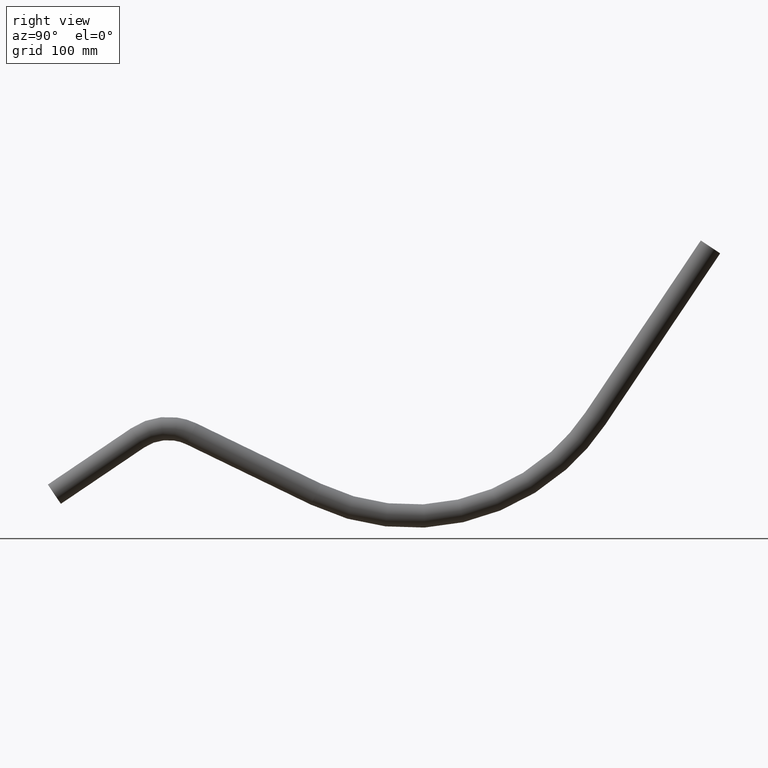
[diagram: clean part render]
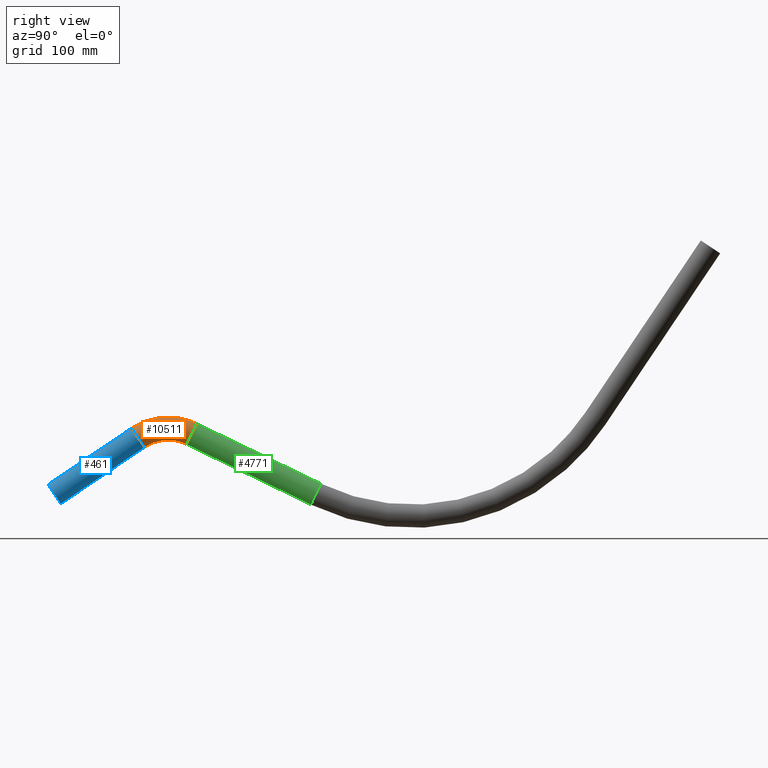
[diagram: same view with three faces highlighted in distinct colors, each labeled with its STEP entity id]
A machine part, right view with three faces highlighted in distinct colors.
Their STEP definitions:

[orange] entity #10511 — the highlighted toroidal blend (fillet) surface has major radius 78 mm and minor (blend) radius 16.85 mm.
#364 = EDGE_LOOP ( 'NONE', ( #8278 ) ) ;
#425 = DIRECTION ( 'NONE',  ( 0.000000000000000000, 0.4360091527519491250, 0.8999422307662461318 ) ) ;
#1528 = CARTESIAN_POINT ( 'NONE',  ( 0.000000000000000000, 198.9044785883536974, 87.48959659120592391 ) ) ;
#1829 = TOROIDAL_SURFACE ( 'NONE', #2701, 78.00000000000167688, 16.85000000000001563 ) ;
#2153 = FACE_OUTER_BOUND ( 'NONE', #7526, .T. ) ;
#2701 = AXIS2_PLACEMENT_3D ( 'NONE', #3807, #9348, #12627 ) ;
#3632 = AXIS2_PLACEMENT_3D ( 'NONE', #8514, #4124, #4213 ) ;
#3807 = CARTESIAN_POINT ( 'NONE',  ( 0.000000000000000000, 164.8957646737008815, 17.29410259143726591 ) ) ;
#4124 = DIRECTION ( 'NONE',  ( 0.000000000000000000, 0.8285446294372469378, 0.5599230277731889194 ) ) ;
#4213 = DIRECTION ( 'NONE',  ( 0.000000000000000000, -0.5599230277731889194, 0.8285446294372468268 ) ) ;
#4523 = AXIS2_PLACEMENT_3D ( 'NONE', #1528, #4943, #425 ) ;
#4943 = DIRECTION ( 'NONE',  ( 0.000000000000000000, 0.8999422307662464648, -0.4360091527519489585 ) ) ;
#5008 = CIRCLE ( 'NONE', #4523, 16.85000000000001563 ) ;
#5931 = EDGE_CURVE ( 'NONE', #14113, #14113, #5008, .T. ) ;
#7526 = EDGE_LOOP ( 'NONE', ( #7569 ) ) ;
#7569 = ORIENTED_EDGE ( 'NONE', *, *, #5931, .F. ) ;
#7993 = VERTEX_POINT ( 'NONE', #13561 ) ;
#8278 = ORIENTED_EDGE ( 'NONE', *, *, #12401, .T. ) ;
#8514 = CARTESIAN_POINT ( 'NONE',  ( 0.000000000000000000, 121.2217685073911895, 81.92058368754396724 ) ) ;
#9348 = DIRECTION ( 'NONE',  ( -1.000000000000000000, -0.000000000000000000, 0.000000000000000000 ) ) ;
#10511 = ADVANCED_FACE ( 'NONE', ( #2153, #12747 ), #1829, .T. ) ;
#12326 = CARTESIAN_POINT ( 'NONE',  ( 0.000000000000000000, 206.2512328122240319, 102.6536231796171847 ) ) ;
#12401 = EDGE_CURVE ( 'NONE', #7993, #7993, #13980, .T. ) ;
#12627 = DIRECTION ( 'NONE',  ( 0.000000000000000000, 0.000000000000000000, 1.000000000000000000 ) ) ;
#12747 = FACE_OUTER_BOUND ( 'NONE', #364, .T. ) ;
#13561 = CARTESIAN_POINT ( 'NONE',  ( 0.000000000000000000, 111.7870654894129387, 95.88156069356159605 ) ) ;
#13980 = CIRCLE ( 'NONE', #3632, 16.85000000000002629 ) ;
#14113 = VERTEX_POINT ( 'NONE', #12326 ) ;

[blue] entity #461 — the highlighted cylindrical surface (bore or boss wall) has radius 16.85 mm, axis along (0, 0.8285, 0.5599).
#461 = ADVANCED_FACE ( 'NONE', ( #4339, #4498 ), #14081, .T. ) ;
#3632 = AXIS2_PLACEMENT_3D ( 'NONE', #8514, #4124, #4213 ) ;
#3655 = EDGE_CURVE ( 'NONE', #6114, #6114, #13866, .T. ) ;
#3658 = AXIS2_PLACEMENT_3D ( 'NONE', #13859, #4007, #12908 ) ;
#3761 = DIRECTION ( 'NONE',  ( 0.000000000000000000, -0.5599230277731889194, 0.8285446294372469378 ) ) ;
#4007 = DIRECTION ( 'NONE',  ( 0.000000000000000000, 0.8285446294372469378, 0.5599230277731889194 ) ) ;
#4124 = DIRECTION ( 'NONE',  ( 0.000000000000000000, 0.8285446294372469378, 0.5599230277731889194 ) ) ;
#4213 = DIRECTION ( 'NONE',  ( 0.000000000000000000, -0.5599230277731889194, 0.8285446294372468268 ) ) ;
#4339 = FACE_OUTER_BOUND ( 'NONE', #14403, .T. ) ;
#4498 = FACE_OUTER_BOUND ( 'NONE', #9823, .T. ) ;
#4706 = AXIS2_PLACEMENT_3D ( 'NONE', #13916, #10429, #3761 ) ;
#6114 = VERTEX_POINT ( 'NONE', #11249 ) ;
#7993 = VERTEX_POINT ( 'NONE', #13561 ) ;
#8514 = CARTESIAN_POINT ( 'NONE',  ( 0.000000000000000000, 121.2217685073911895, 81.92058368754396724 ) ) ;
#9823 = EDGE_LOOP ( 'NONE', ( #14087 ) ) ;
#10429 = DIRECTION ( 'NONE',  ( 0.000000000000000000, 0.8285446294372469378, 0.5599230277731889194 ) ) ;
#11249 = CARTESIAN_POINT ( 'NONE',  ( 0.000000000000000000, -9.434703017978241846, 13.96097700601761993 ) ) ;
#11260 = ORIENTED_EDGE ( 'NONE', *, *, #12401, .F. ) ;
#12401 = EDGE_CURVE ( 'NONE', #7993, #7993, #13980, .T. ) ;
#12908 = DIRECTION ( 'NONE',  ( 0.000000000000000000, -0.5599230277731889194, 0.8285446294372469378 ) ) ;
#13561 = CARTESIAN_POINT ( 'NONE',  ( 0.000000000000000000, 111.7870654894129387, 95.88156069356159605 ) ) ;
#13859 = CARTESIAN_POINT ( 'NONE',  ( 0.000000000000000000, 0.000000000000000000, -3.469446951953614189E-15 ) ) ;
#13866 = CIRCLE ( 'NONE', #4706, 16.85000000000001563 ) ;
#13916 = CARTESIAN_POINT ( 'NONE',  ( 0.000000000000000000, 0.000000000000000000, -3.469446951953614189E-15 ) ) ;
#13980 = CIRCLE ( 'NONE', #3632, 16.85000000000002629 ) ;
#14081 = CYLINDRICAL_SURFACE ( 'NONE', #3658, 16.85000000000001563 ) ;
#14087 = ORIENTED_EDGE ( 'NONE', *, *, #3655, .T. ) ;
#14403 = EDGE_LOOP ( 'NONE', ( #11260 ) ) ;

[green] entity #4771 — the highlighted cylindrical surface (bore or boss wall) has radius 16.85 mm, axis along (0, 0.8999, -0.436).
#263 = DIRECTION ( 'NONE',  ( 0.000000000000000000, 0.8999422307662464648, -0.4360091527519487364 ) ) ;
#314 = FACE_OUTER_BOUND ( 'NONE', #4574, .T. ) ;
#425 = DIRECTION ( 'NONE',  ( 0.000000000000000000, 0.4360091527519491250, 0.8999422307662461318 ) ) ;
#453 = EDGE_LOOP ( 'NONE', ( #1446 ) ) ;
#1446 = ORIENTED_EDGE ( 'NONE', *, *, #3993, .F. ) ;
#1528 = CARTESIAN_POINT ( 'NONE',  ( 0.000000000000000000, 198.9044785883536974, 87.48959659120592391 ) ) ;
#2270 = CARTESIAN_POINT ( 'NONE',  ( 0.000000000000000000, 198.9044785883538680, 87.48959659120603760 ) ) ;
#3963 = CYLINDRICAL_SURFACE ( 'NONE', #11858, 16.85000000000001563 ) ;
#3993 = EDGE_CURVE ( 'NONE', #10973, #10973, #13499, .T. ) ;
#4490 = DIRECTION ( 'NONE',  ( 0.000000000000000000, 0.4360091527519491250, 0.8999422307662461318 ) ) ;
#4523 = AXIS2_PLACEMENT_3D ( 'NONE', #1528, #4943, #425 ) ;
#4574 = EDGE_LOOP ( 'NONE', ( #11448 ) ) ;
#4771 = ADVANCED_FACE ( 'NONE', ( #11919, #314 ), #3963, .T. ) ;
#4943 = DIRECTION ( 'NONE',  ( 0.000000000000000000, 0.8999422307662464648, -0.4360091527519489585 ) ) ;
#5008 = CIRCLE ( 'NONE', #4523, 16.85000000000001563 ) ;
#5931 = EDGE_CURVE ( 'NONE', #14113, #14113, #5008, .T. ) ;
#6762 = CARTESIAN_POINT ( 'NONE',  ( 0.000000000000000000, 386.8336408377791713, 15.16402658841126616 ) ) ;
#7044 = DIRECTION ( 'NONE',  ( 0.000000000000000000, 0.4360091527519476817, 0.8999422307662467979 ) ) ;
#8103 = CARTESIAN_POINT ( 'NONE',  ( 0.000000000000000000, 379.4868866139088368, 0.000000000000000000 ) ) ;
#8688 = AXIS2_PLACEMENT_3D ( 'NONE', #8103, #263, #7044 ) ;
#10973 = VERTEX_POINT ( 'NONE', #6762 ) ;
#11448 = ORIENTED_EDGE ( 'NONE', *, *, #5931, .T. ) ;
#11858 = AXIS2_PLACEMENT_3D ( 'NONE', #2270, #13275, #4490 ) ;
#11919 = FACE_OUTER_BOUND ( 'NONE', #453, .T. ) ;
#12326 = CARTESIAN_POINT ( 'NONE',  ( 0.000000000000000000, 206.2512328122240319, 102.6536231796171847 ) ) ;
#13275 = DIRECTION ( 'NONE',  ( 0.000000000000000000, 0.8999422307662463538, -0.4360091527519486809 ) ) ;
#13499 = CIRCLE ( 'NONE', #8688, 16.85000000000000853 ) ;
#14113 = VERTEX_POINT ( 'NONE', #12326 ) ;